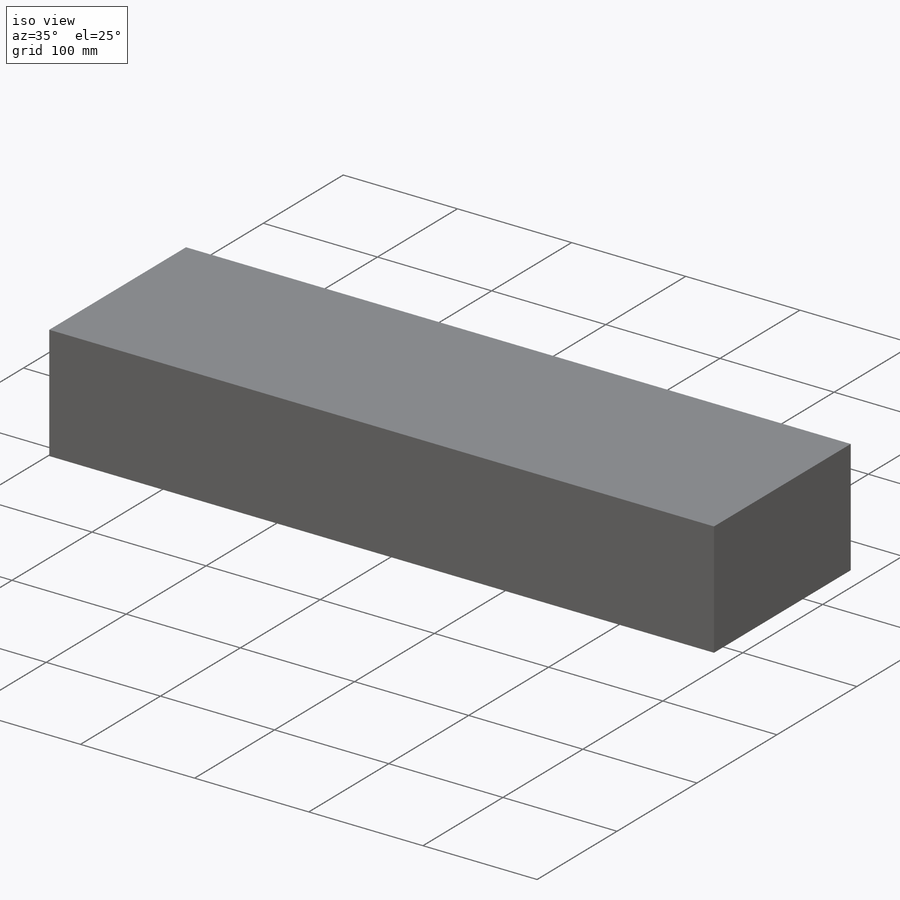
[diagram: iso view]
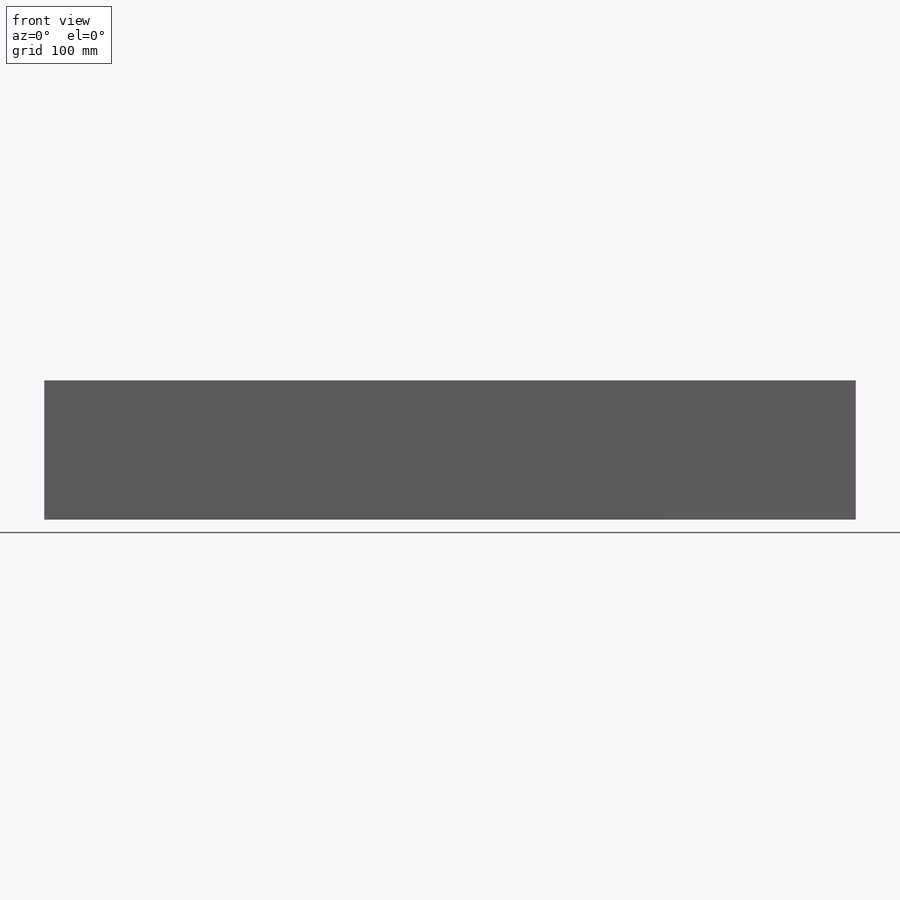
[diagram: front view]
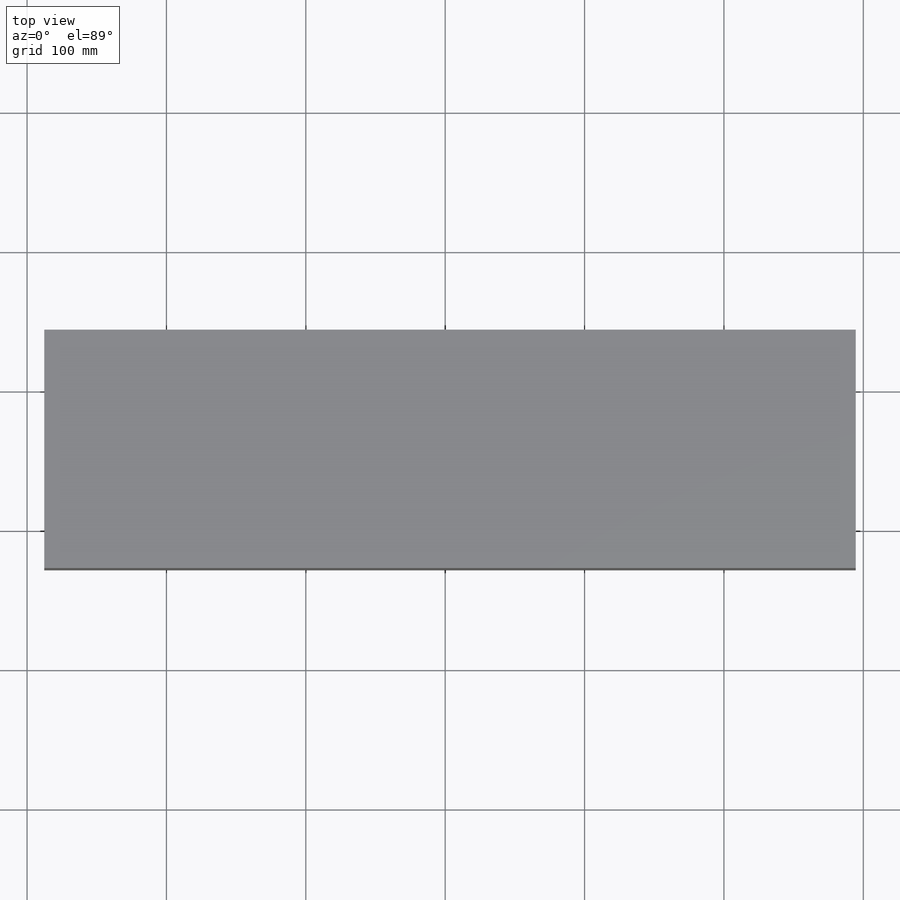
[diagram: top view]
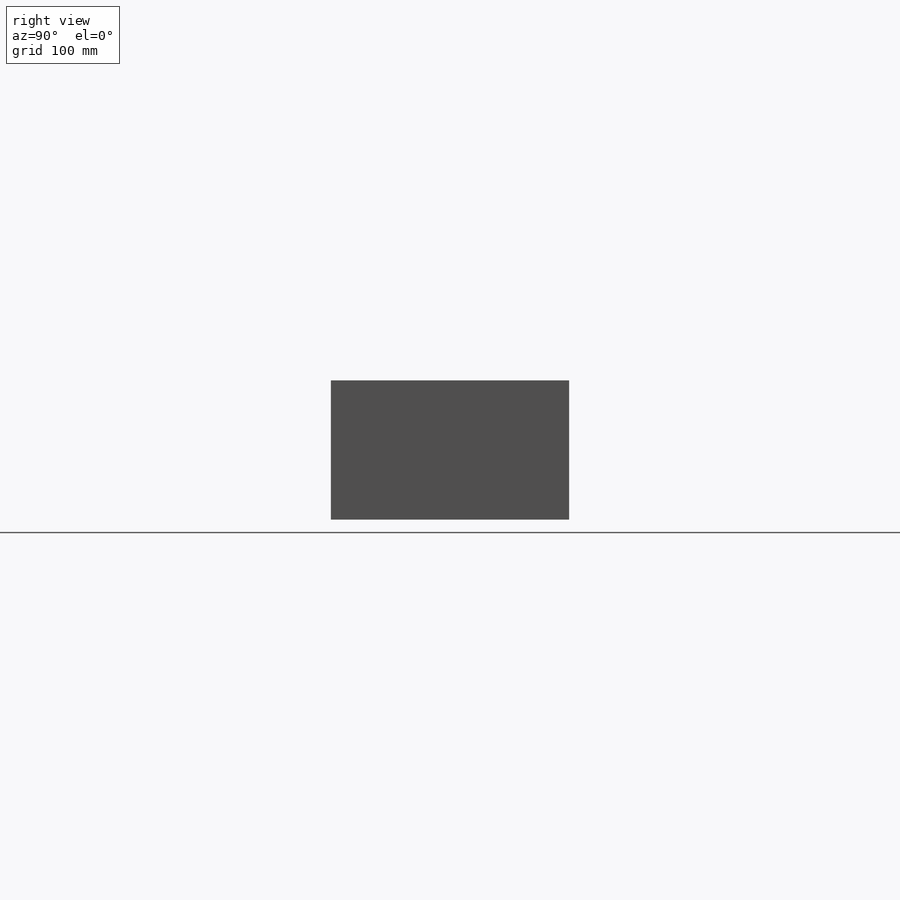
[diagram: right view]
SOLIDWORKS PART (.sldprt)
format: sldprt  version: not decoded by parser v0  size: 974,336 bytes
history: native  units: mm
features: sketch x16, extrude x5, fillet x5, plane x4, cut_revolve x4, revolve x3, mirror x3, cut_extrude x2, material x1, shell x1 (+10 scaffold rows collapsed)
feature tree (54):
  scaffold x10  (default folders/planes/origin — collapsed)
  material  "Material <nicht angegeben>"
  plane  "Ebene vorne"
  plane  "Ebene oben"
  plane  "Ebene rechts"
  sketch  "Skizze3"  dims[D1=42.1mm D2=100.0mm]
  extrude  "Aufsatz-Linear austragen1"  Depth=10mm
  sketch  "Skizze4"
  plane  "Ebene1"
  sketch  "Skizze5"  dims[D1=22.0mm D2=30.0mm]
  extrude  "Aufsatz-Linear austragen3"  [1 undecoded]
  fillet  "Verrundung2"  Radius=90mm
  fillet  "Verrundung3"  Radius=90mm
  shell  "Wandung6"  Thickness=6mm
  sketch  "Skizze7"  dims[c1.D1=38.1mm c1.D2=~22.450021mm c2.D2=63.5deg c3.D2=~19.787041mm c4.D2=80.0deg c4.D3=24.0mm]
  cut_extrude  "Schnitt-Linear austragen1"  [1 undecoded]
  sketch  "Skizze8"  dims[D1=20.0mm D2=2000.0mm]
  revolve  "Rotation1"  Angle=14.3deg
  sketch  "Skizze9"
  extrude  "Aufsatz-Linear austragen4"  Depth=30mm
  sketch  "Skizze11"  dims[D1=32.0mm D2=19.8mm D3=600.0mm]
  revolve  "Rotation2"  Angle=20deg
  sketch  "Skizze13"  dims[D1=2000.0mm]
  cut_revolve  "Schnitt-Rotation2"  Angle=6deg
  mirror  "Spiegeln1"
  sketch  "Skizze14"  dims[D2=35.0mm D1=3.0mm D3=2500.0mm D4=28.0mm]
  cut_revolve  "Schnitt-Rotation3"  Angle=360deg
  sketch  "Skizze15"  dims[c1.D1=28.0mm c2.D1=10.0mm c2.D2=50.0mm c2.D5=2.0mm c2.D6=1.0mm c2.D7=5.0mm]
  mirror  "Spiegeln2"
  fillet  "Verrundung4"  Radius=5mm
  fillet  "Verrundung5"  Radius=2mm
  sketch  "Skizze17"  dims[D1=18.0mm D2=2000.0mm]
  cut_revolve  "Schnitt-Rotation4"  Angle=20deg
  sketch  "Skizze19"  dims[D1=2000.0mm]
  cut_revolve  "Schnitt-Rotation6"  Angle=0.54deg
  fillet  "Verrundung8"  Radius=5mm Variabler Verrundungsradius6=0 Variabler Verrundungsradius11=0
  sketch  "Skizze22"  dims[D1=4.5mm D2=3.5mm D3=10.0mm D4=40.0mm]
  cut_extrude  "Schnitt-Linear austragen6"  [1 undecoded]
  mirror  "Spiegeln4"
  sketch  "Skizze30"
  extrude  "Aufsatz-Linear austragen5"  Depth=20mm
  sketch  "Skizze31"  dims[D1=2000.0mm]
  revolve  "Rotation3"  Angle=15deg
  sketch  "Skizze32"
  extrude  "Aufsatz-Linear austragen6"  Depth=30mm
decode coverage: 29 of 39 modeling features carry decoded parameters
note: ~ marks probable driven/reference dimensions
note: 3 parameter values undecoded
summary: no parameter record found for 3 features
note: suppression state not decoded; provenance and decode notes live in map.json
